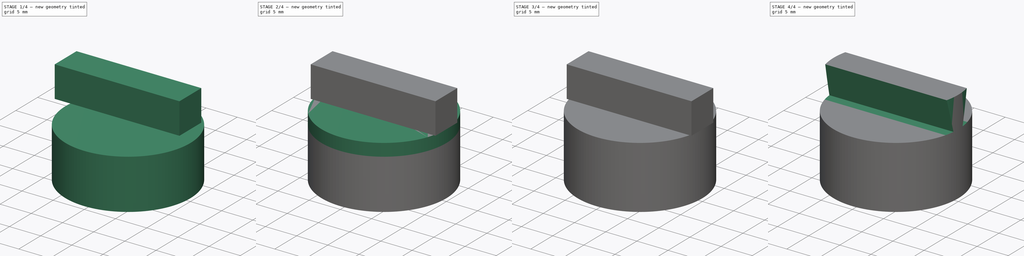
[diagram: build sequence overview — one tinted view per stage of 4, left to right]
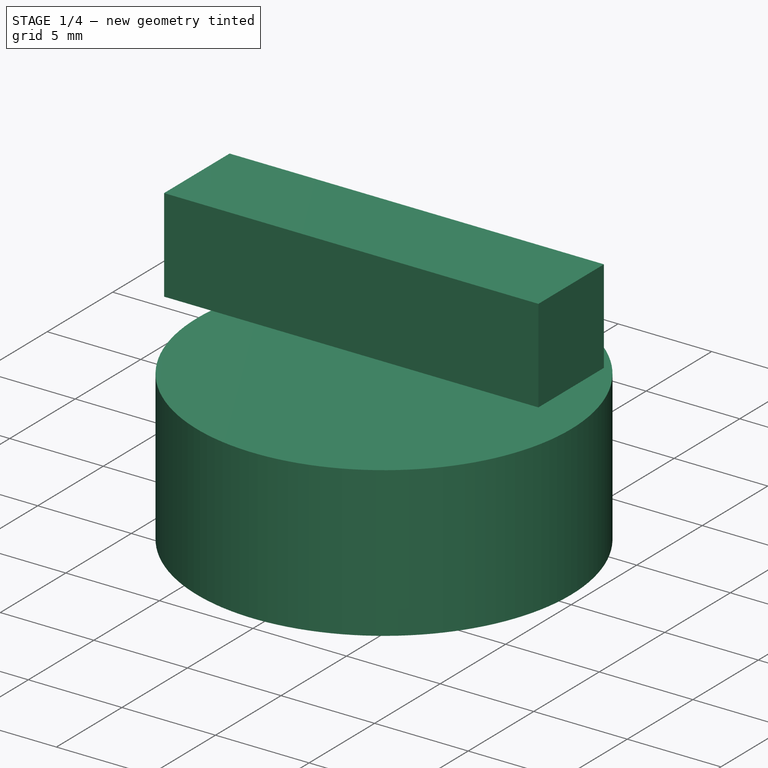
[diagram: stage 1 of 4 — iso view after this stage's code; geometry added in this stage tinted green]
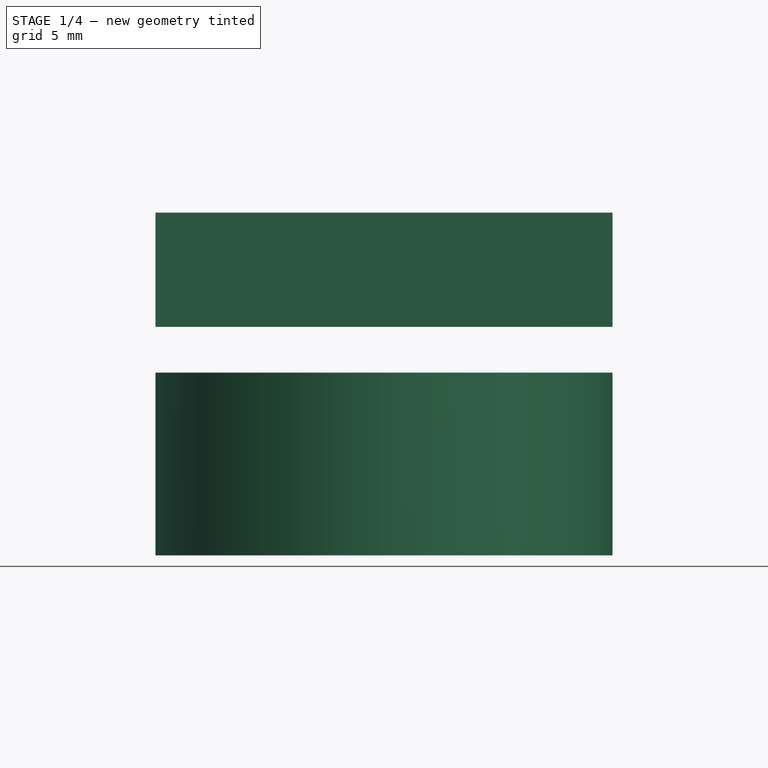
[diagram: stage 1 of 4 — front view after this stage's code; geometry added in this stage tinted green]
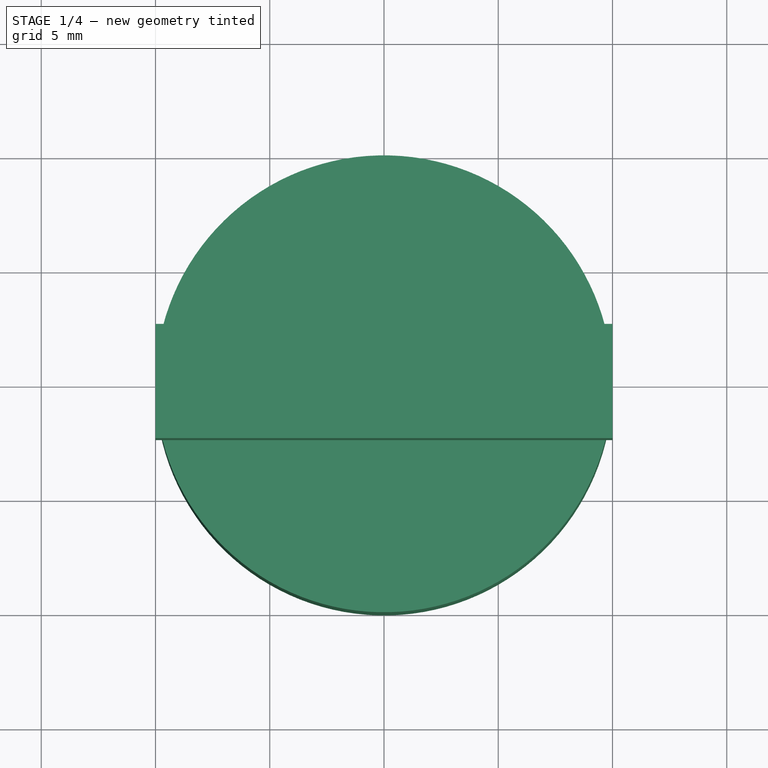
[diagram: stage 1 of 4 — top view after this stage's code; geometry added in this stage tinted green]
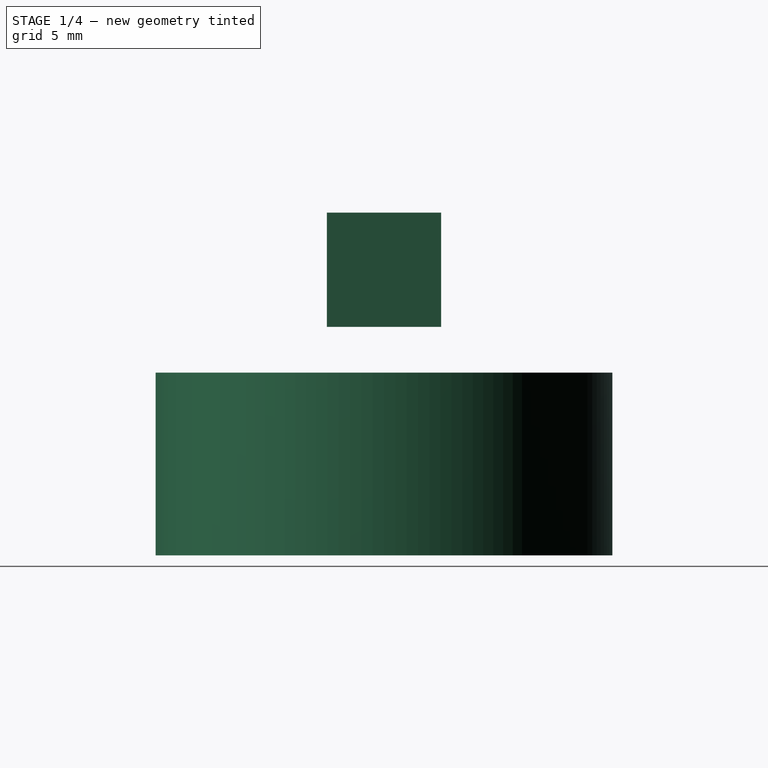
[diagram: stage 1 of 4 — right view after this stage's code; geometry added in this stage tinted green]
FCSTD DOCUMENT  (FreeCAD 0.17R13541 (Git))
Label: TripodToMagic
License: Other
LicenseURL: https://www.gnu.org/licenses/gpl-2.0.html
objects: Sketcher::SketchObject×5, PartDesign::Pocket×4, PartDesign::FeatureBase×2, PartDesign::Body×2, Part::Cylinder×1, PartDesign::Pad×1, Part::Box×1, Part::MultiFuse×1
note: 22 computed .brp shape members not serialized (recipe doc carries the construction recipe); baked Part::Feature solids carry a one-line shape summary decoded from their .brp

FEATURE [Part::Cylinder] Cylinder
  Angle = 360
  AttacherType = Attacher::AttachEngine3D
  Height = 8
  Radius = 10
FEATURE [PartDesign::Body] Body
  BaseFeature = -> Cylinder
  Group = -> [BaseFeature,Sketch,Pocket,Sketch001,Pad,Sketch002,Pocket001]
  Origin = -> Origin
  Tip = -> Pocket001
FEATURE [Part::Box] Box  label="AttachPart"
  AttacherType = Attacher::AttachEngine3D
  Height = 5
  Length = 20
  Placement = pos=(-10,-2.5,10) rot=(0,0,1;0rad)
  Width = 5
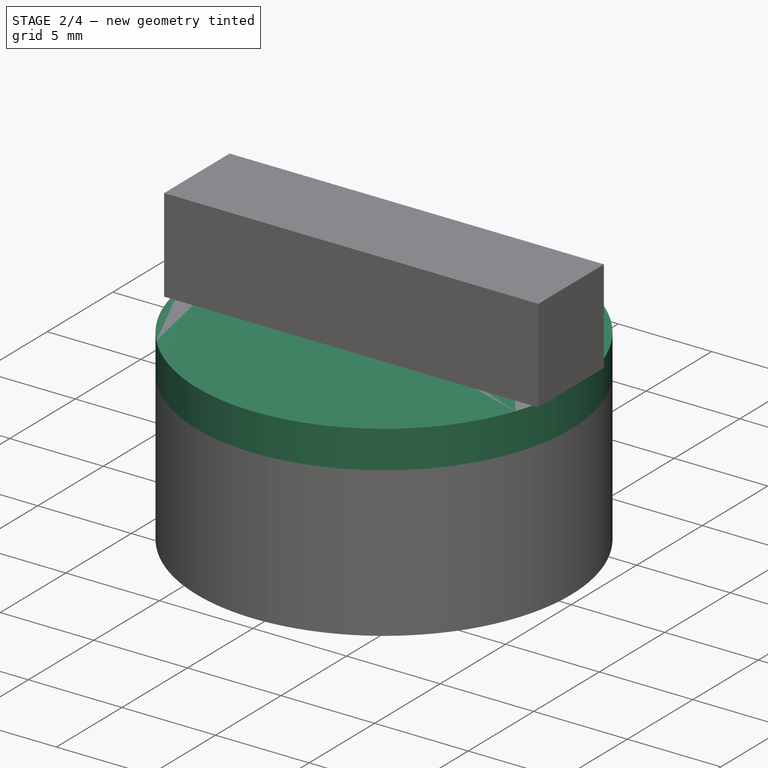
[diagram: stage 2 of 4 — iso view after this stage's code; geometry added in this stage tinted green]
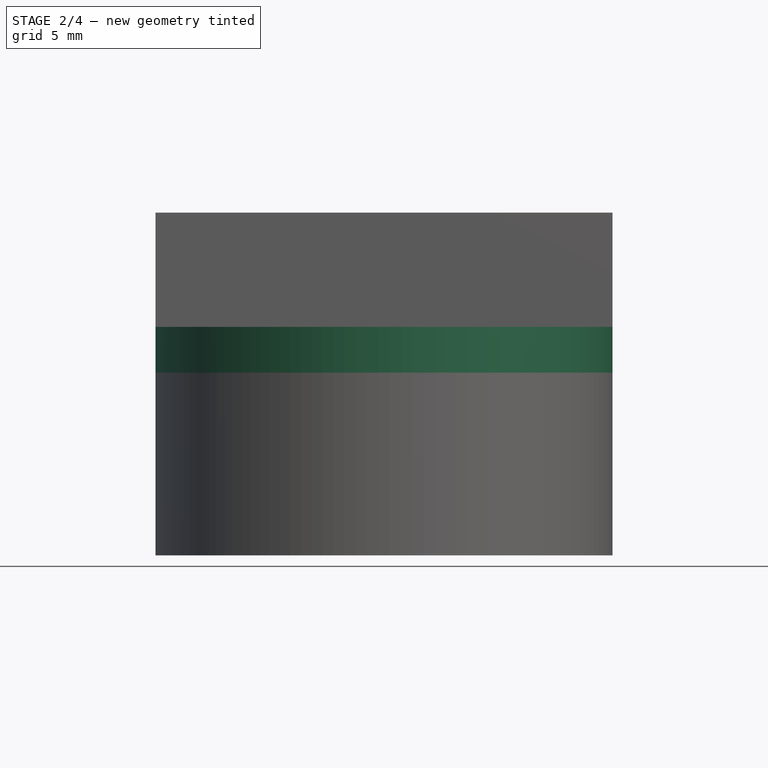
[diagram: stage 2 of 4 — front view after this stage's code; geometry added in this stage tinted green]
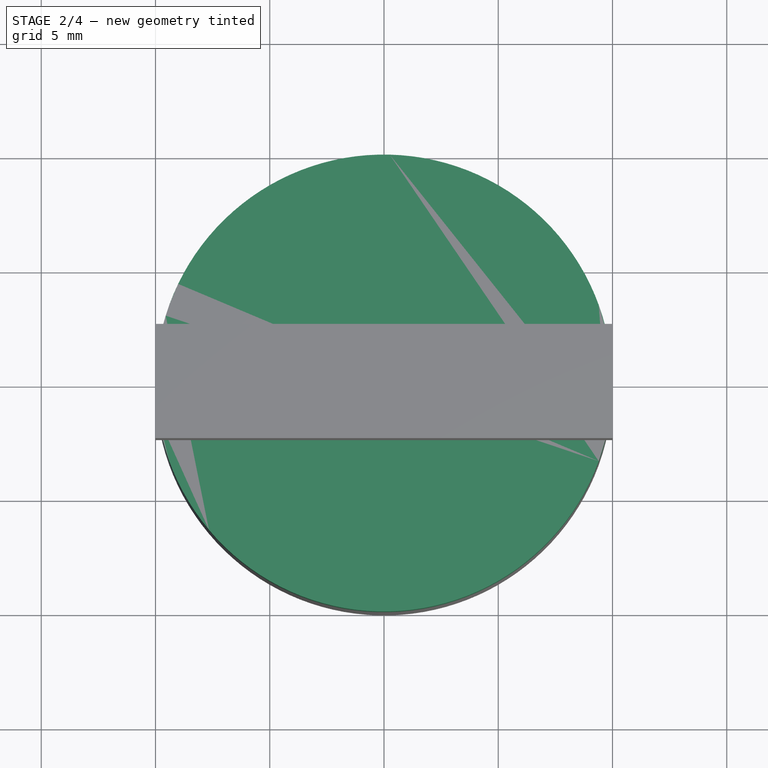
[diagram: stage 2 of 4 — top view after this stage's code; geometry added in this stage tinted green]
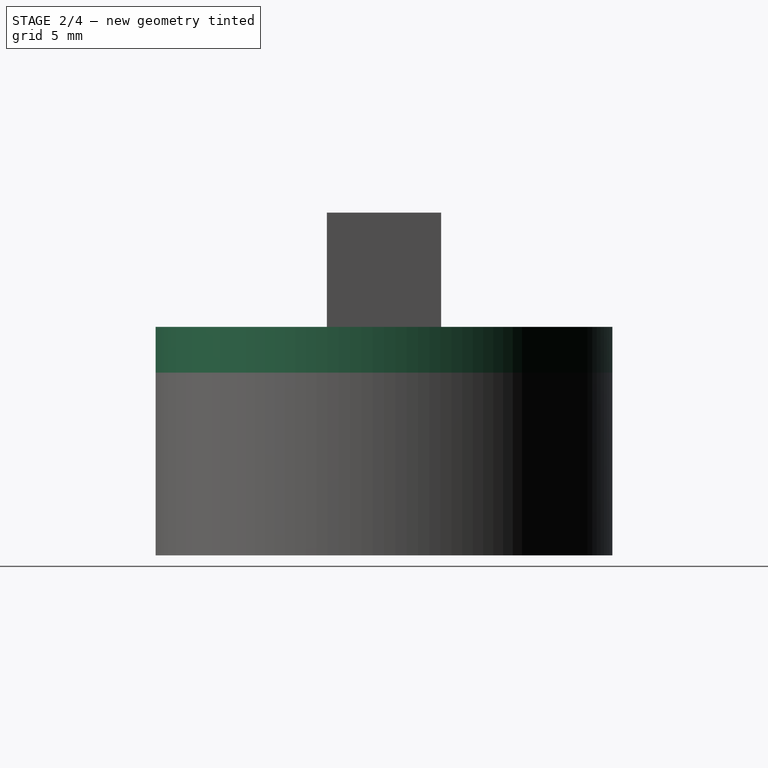
[diagram: stage 2 of 4 — right view after this stage's code; geometry added in this stage tinted green]
FEATURE [PartDesign::FeatureBase] BaseFeature
  BaseFeature = -> Cylinder
FEATURE [Sketcher::SketchObject] Sketch  label="SketchNut"
  MapMode = 5
  Placement = pos=(0,0,8) rot=(0,0,1;0rad)
  Support = -> [BaseFeature]
  sketch-geometry (7):
    g0: LineSegment StartX=3.45 StartY=-5.97558 StartZ=0 EndX=6.9 EndY=0 EndZ=0
    g1: LineSegment StartX=6.9 StartY=0 StartZ=0 EndX=3.45 EndY=5.97558 EndZ=0
    g2: LineSegment StartX=3.45 StartY=5.97558 StartZ=0 EndX=-3.45 EndY=5.97558 EndZ=0
    g3: LineSegment StartX=-3.45 StartY=5.97558 StartZ=0 EndX=-6.9 EndY=0 EndZ=0
    g4: LineSegment StartX=-6.9 StartY=0 StartZ=0 EndX=-3.45 EndY=-5.97558 EndZ=0
    g5: LineSegment StartX=-3.45 StartY=-5.97558 StartZ=0 EndX=3.45 EndY=-5.97558 EndZ=0
    g6: Circle [constr] CenterX=0 CenterY=0 CenterZ=0 NormalX=0 NormalY=0 NormalZ=1 AngleXU=0 Radius=6.9
  constraints (16):
    c: Coincident(g0,g1)
    c: Coincident(g1,g2)
    c: Coincident(g2,g3)
    c: Coincident(g3,g4)
    c: Coincident(g4,g5)
    c: Coincident(g5,g0)
    c: Equal(g0, g1-g5) x5
    c: PointOnObject(g0,g6)
    c: PointOnObject(g1,g6)
    c: PointOnObject(g2,g6)
    c: PointOnObject(g3,g6)
    c: PointOnObject(g4,g6)
    c: PointOnObject(g5,g6)
    c: Coincident(g6,g-1)
    c: Radius(g6) = 6.9
    c: PointOnObject(g0,g-1)
FEATURE [PartDesign::Pocket] Pocket
  BaseFeature = -> BaseFeature
  Length = 6
  Length2 = 100
  Profile = -> Sketch
  Type = 0
FEATURE [Sketcher::SketchObject] Sketch001  label="FillNut"
  ExternalGeometry = -> [Pocket]
  MapMode = 5
  Placement = pos=(0,0,8) rot=(0,0,1;0rad)
  Support = -> [Pocket]
  sketch-geometry (1):
    g0: Circle CenterX=0 CenterY=0 CenterZ=0 NormalX=0 NormalY=0 NormalZ=1 AngleXU=0 Radius=10
  constraints (2):
    c: Coincident(g0,g-1)
    c: Equal(g0,g-3)
FEATURE [PartDesign::Pad] Pad
  BaseFeature = -> Pocket
  Length = 2
  Length2 = 100
  Profile = -> Sketch001
  Type = 0
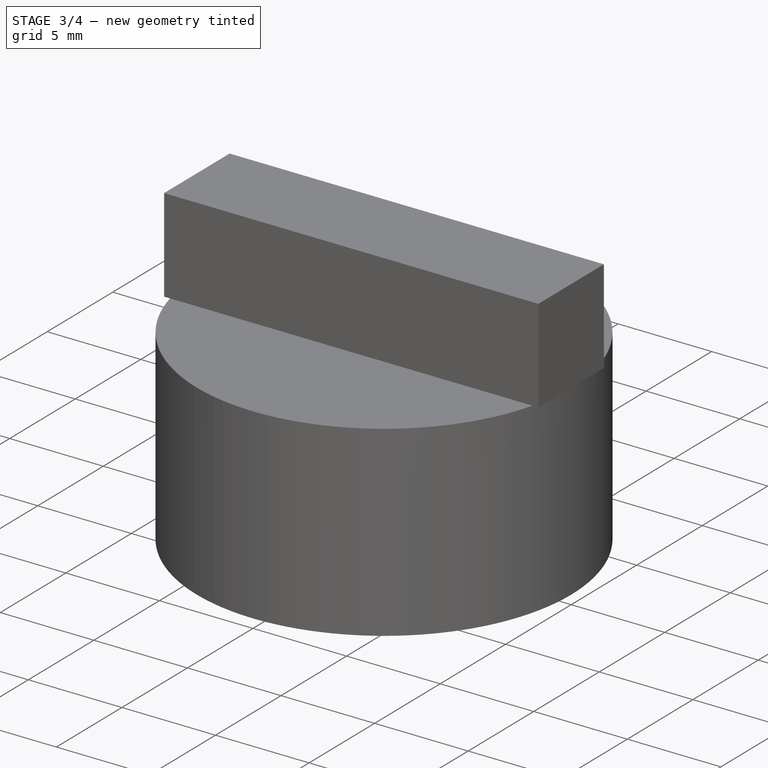
[diagram: stage 3 of 4 — iso view after this stage's code; geometry added in this stage tinted green]
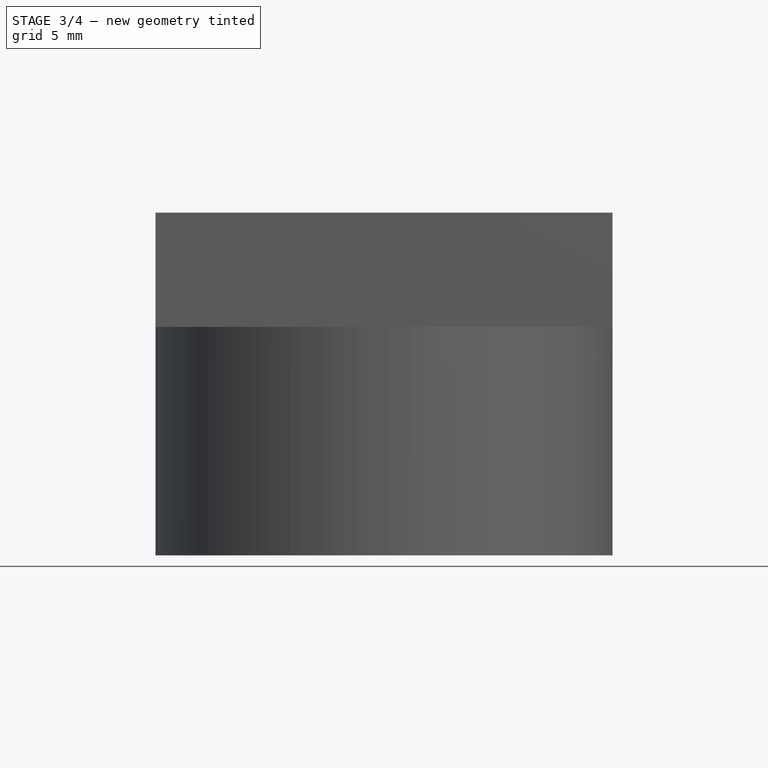
[diagram: stage 3 of 4 — front view after this stage's code; geometry added in this stage tinted green]
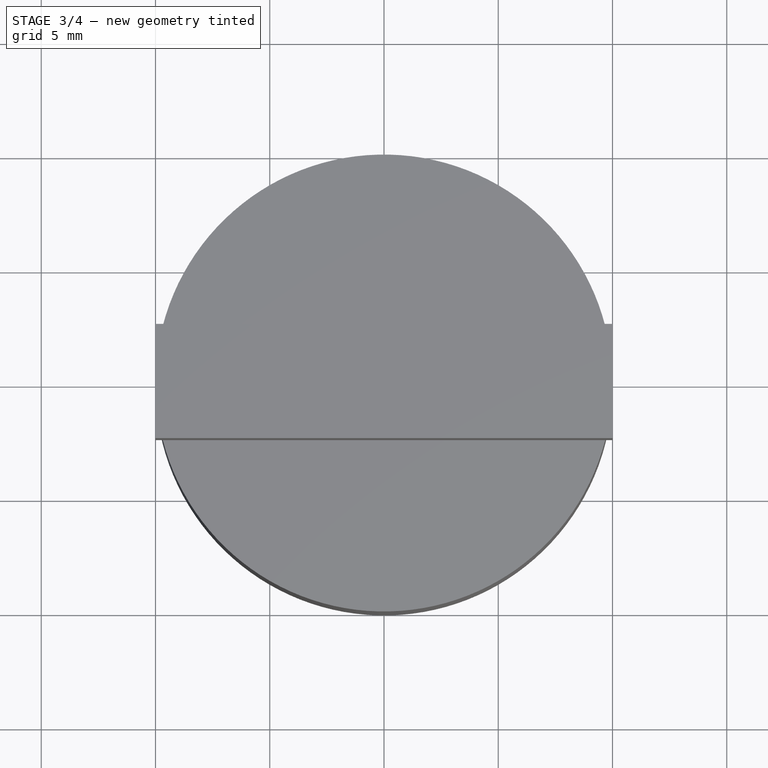
[diagram: stage 3 of 4 — top view after this stage's code; geometry added in this stage tinted green]
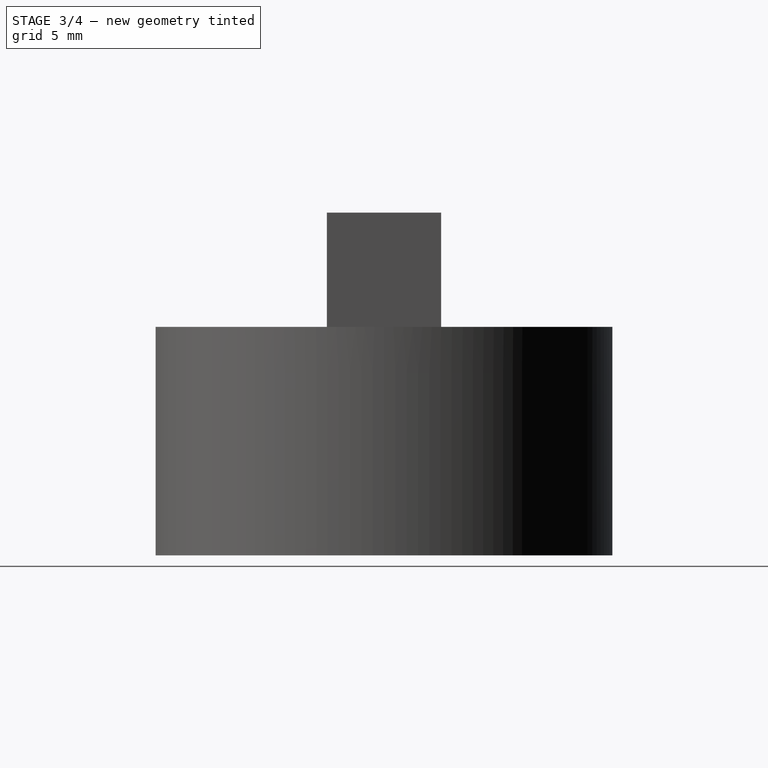
[diagram: stage 3 of 4 — right view after this stage's code; geometry added in this stage tinted green]
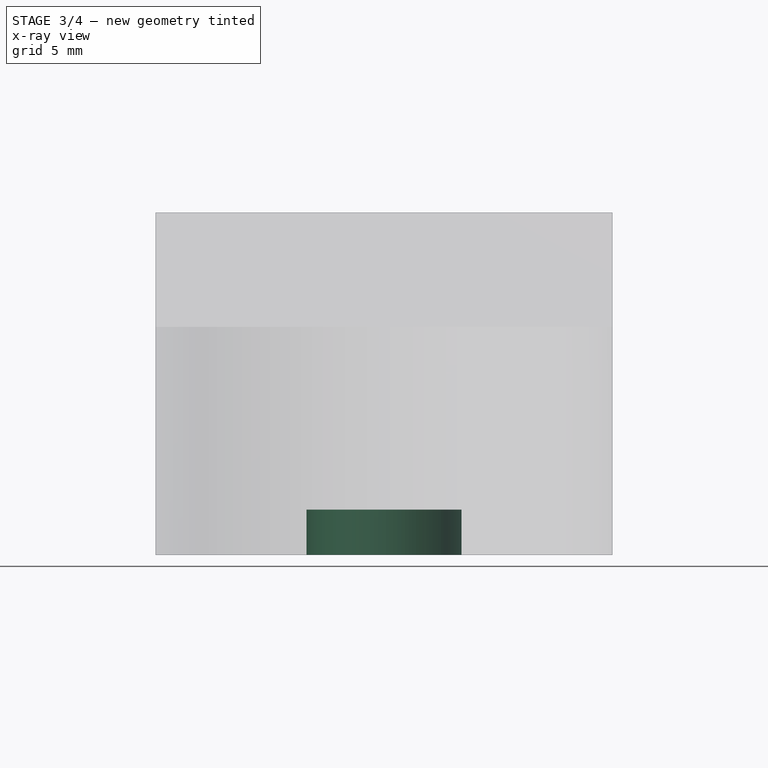
[diagram: stage 3 of 4 — x-ray composite at the front view; earlier geometry ghosted, this stage's added geometry solid]
FEATURE [Sketcher::SketchObject] Sketch002  label="ThreadHole"
  MapMode = 5
  Placement = pos=(0,0,0) rot=(1,0,0;3.14159rad)
  Support = -> [Pad]
  sketch-geometry (1):
    g0: Circle CenterX=0 CenterY=0 CenterZ=0 NormalX=0 NormalY=0 NormalZ=1 AngleXU=0 Radius=3.4
  constraints (2):
    c: Coincident(g-1,g0)
    c: Radius(g0) = 3.4
FEATURE [PartDesign::Pocket] Pocket001
  BaseFeature = -> Pad
  Length = 2
  Length2 = 100
  Profile = -> Sketch002
  Type = 0
FEATURE [Part::MultiFuse] Fusion  label="AttachFusion"
  Shapes = -> [Body,Box]
FEATURE [PartDesign::FeatureBase] BaseFeature001
  BaseFeature = -> Fusion
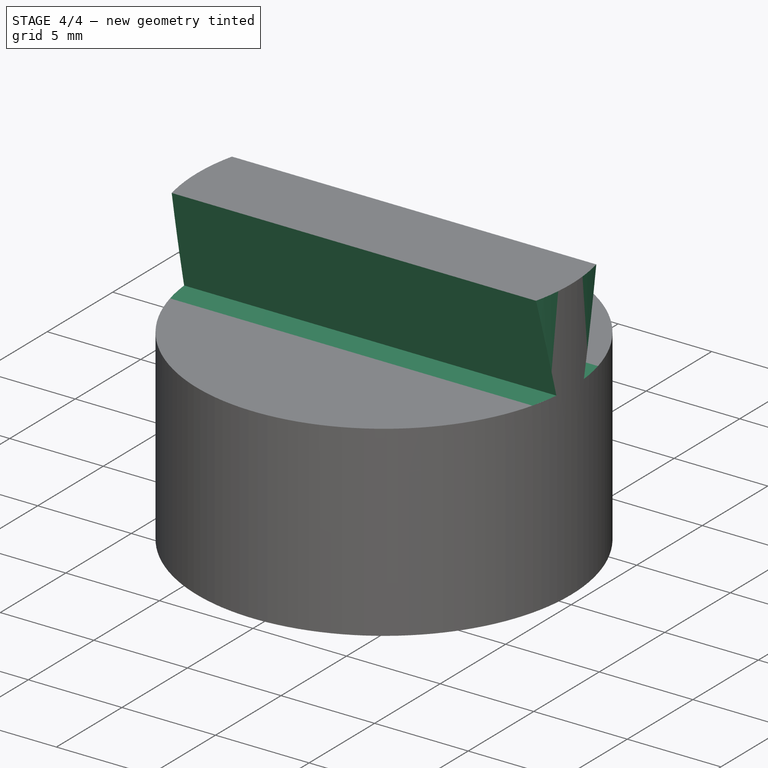
[diagram: stage 4 of 4 — iso view after this stage's code; geometry added in this stage tinted green]
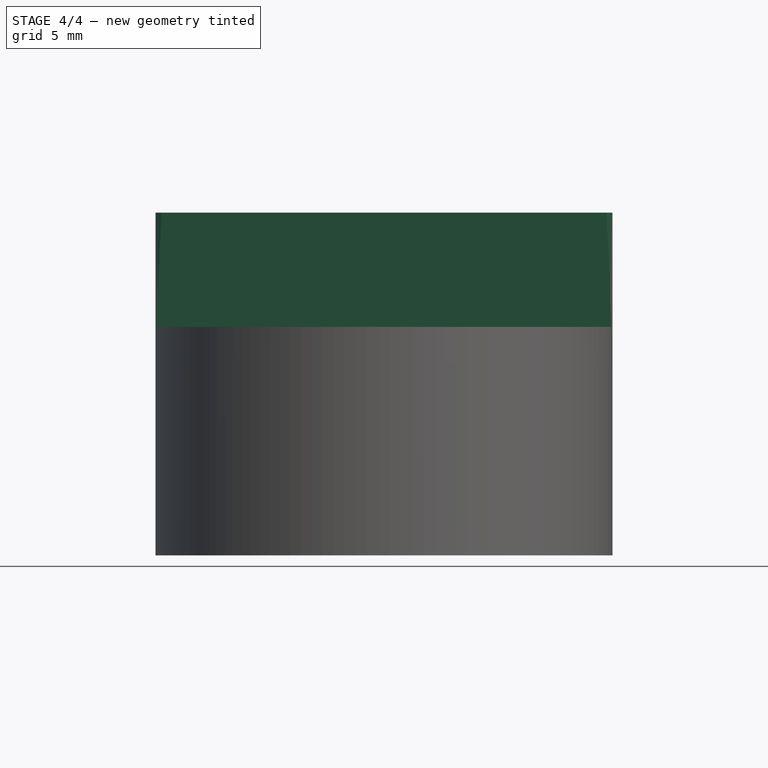
[diagram: stage 4 of 4 — front view after this stage's code; geometry added in this stage tinted green]
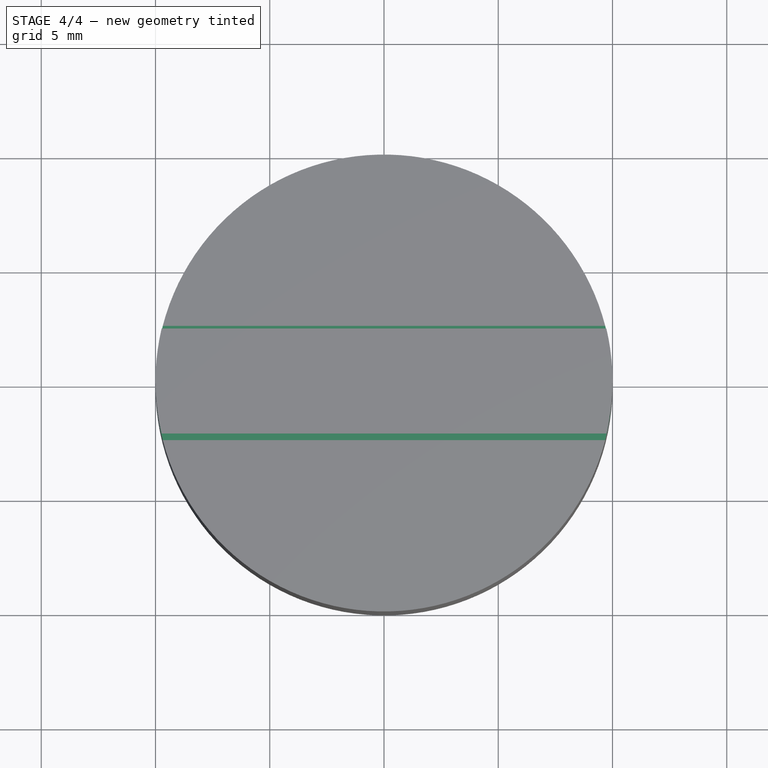
[diagram: stage 4 of 4 — top view after this stage's code; geometry added in this stage tinted green]
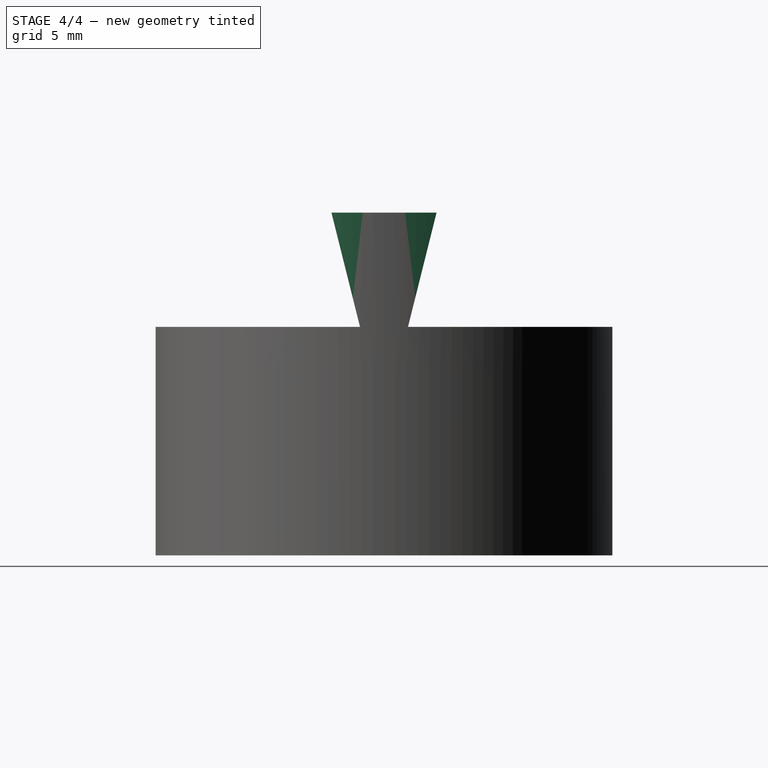
[diagram: stage 4 of 4 — right view after this stage's code; geometry added in this stage tinted green]
FEATURE [Sketcher::SketchObject] Sketch003  label="AttachSketch"
  ExternalGeometry = -> [BaseFeature001]
  MapMode = 5
  Placement = pos=(10,0,0) rot=(0.57735,0.57735,0.57735;2.0944rad)
  Support = -> [BaseFeature001]
  sketch-geometry (13):
    g0: LineSegment [constr] StartX=-2.3 StartY=15 StartZ=0 EndX=2.3 EndY=15 EndZ=0
    g1: LineSegment [constr] StartX=2.3 StartY=15 StartZ=0 EndX=1.05 EndY=10 EndZ=0
    g2: LineSegment [constr] StartX=1.05 StartY=10 StartZ=0 EndX=-1.05 EndY=10 EndZ=0
    g3: LineSegment [constr] StartX=-1.05 StartY=10 StartZ=0 EndX=-2.3 EndY=15 EndZ=0
    g4: GeomPoint X=0 Y=15 Z=0
    g5: LineSegment StartX=2.3 StartY=15 StartZ=0 EndX=2.5 EndY=15 EndZ=0
    g6: LineSegment StartX=2.5 StartY=15 StartZ=0 EndX=2.5 EndY=10 EndZ=0
    g7: LineSegment StartX=2.5 StartY=10 StartZ=0 EndX=1.05 EndY=10 EndZ=0
    g8: LineSegment StartX=1.05 StartY=10 StartZ=0 EndX=2.3 EndY=15 EndZ=0
    g9: LineSegment StartX=-2.5 StartY=15 StartZ=0 EndX=-2.3 EndY=15 EndZ=0
    g10: LineSegment StartX=-2.3 StartY=15 StartZ=0 EndX=-1.05 EndY=10 EndZ=0
    g11: LineSegment StartX=-1.05 StartY=10 StartZ=0 EndX=-2.5 EndY=10 EndZ=0
    g12: LineSegment StartX=-2.5 StartY=10 StartZ=0 EndX=-2.5 EndY=15 EndZ=0
  constraints (30):
    c: Coincident(g0,g1)
    c: Coincident(g1,g2)
    c: Coincident(g2,g3)
    c: Coincident(g3,g0)
    c: PointOnObject(g2,g-4)
    c: PointOnObject(g1,g-3)
    c: PointOnObject(g0,g-7)
    c: PointOnObject(g0,g-7)
    c: DistanceX(g0,g0) = 4.6
    c: PointOnObject(g4,g-2)
    c: PointOnObject(g4,g0)
    c: Symmetric(g0,g0,g4)
    c: DistanceX(g2,g2) = 2.1
    c: Symmetric(g2,g1,g-4)
    c: Coincident(g0,g5)
    c: Coincident(g5,g-7)
    c: Coincident(g5,g6)
    c: Coincident(g6,g-5)
    c: Coincident(g6,g7)
    c: Coincident(g7,g8)
    c: Coincident(g8,g5)
    c: Coincident(g1,g7)
    c: Coincident(g9,g10)
    c: Coincident(g10,g11)
    c: Coincident(g11,g12)
    c: Coincident(g12,g9)
    c: Coincident(g9,g0)
    c: Coincident(g9,g-7)
    c: Coincident(g11,g-6)
    c: Coincident(g10,g2)
FEATURE [PartDesign::Pocket] Pocket002
  BaseFeature = -> BaseFeature001
  Length = 5
  Length2 = 100
  Profile = -> Sketch003
  Type = 1
FEATURE [Sketcher::SketchObject] Sketch004  label="CircleSketch"
  ExternalGeometry = -> [Pocket002]
  MapMode = 5
  Placement = pos=(0,0,0) rot=(1,0,0;3.14159rad)
  Support = -> [Pocket002]
  sketch-geometry (2):
    g0: Circle CenterX=0 CenterY=0 CenterZ=0 NormalX=0 NormalY=0 NormalZ=1 AngleXU=0 Radius=10
    g1: Circle CenterX=0 CenterY=0 CenterZ=0 NormalX=0 NormalY=0 NormalZ=1 AngleXU=0 Radius=15
  constraints (4):
    c: Coincident(g1,g0)
    c: Coincident(g0,g-1)
    c: Equal(g0,g-3)
    c: Radius(g1) = 15
FEATURE [PartDesign::Pocket] Pocket003
  BaseFeature = -> Pocket002
  Length = 5
  Length2 = 100
  Profile = -> Sketch004
  Type = 1
FEATURE [PartDesign::Body] Body001  label="AttachBody"
  BaseFeature = -> Fusion
  Group = -> [BaseFeature001,Sketch003,Pocket002,Sketch004,Pocket003]
  Origin = -> Origin001
  Tip = -> Pocket003
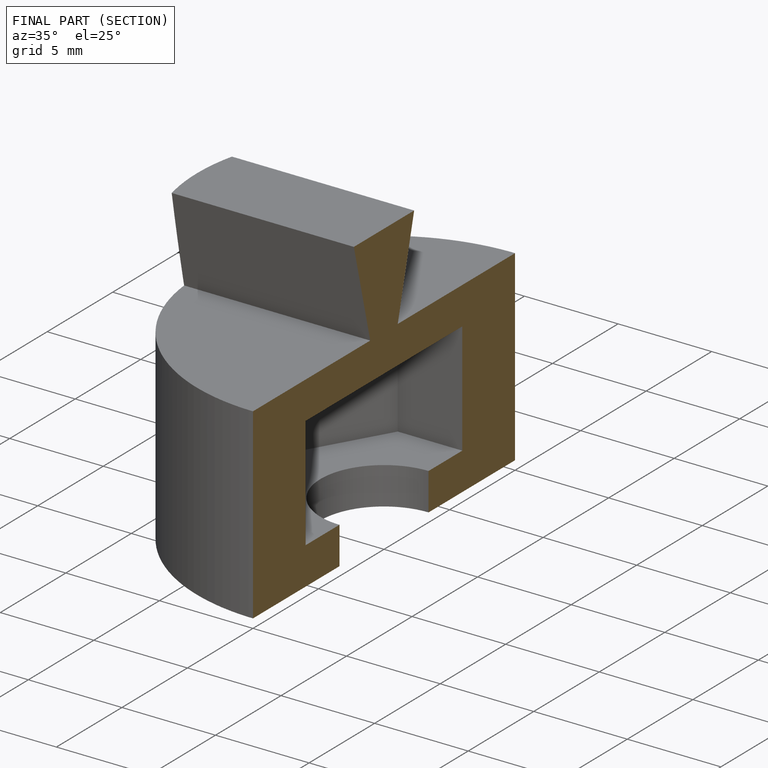
[diagram: finished part — half-section view (interior)]
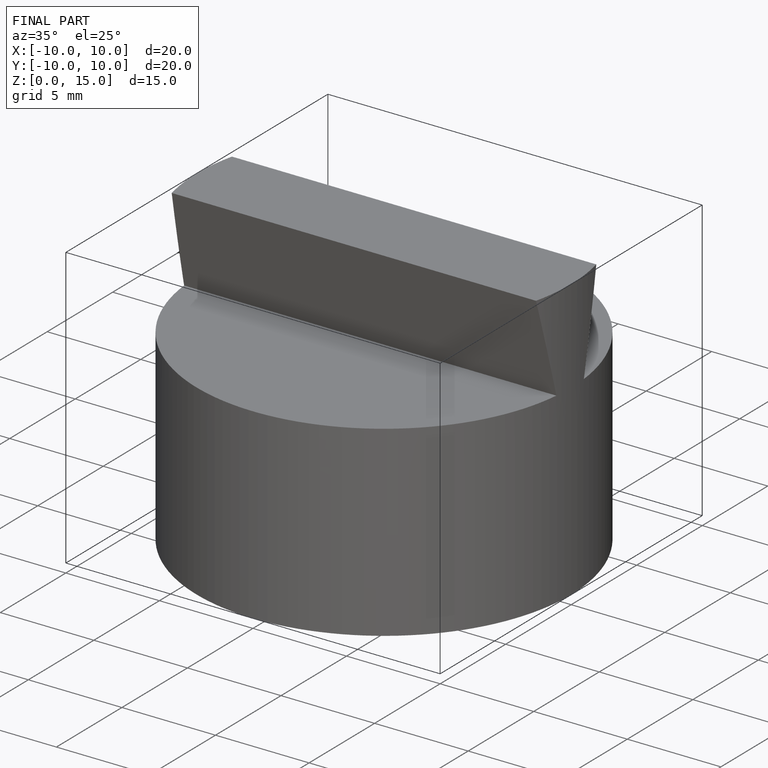
[diagram: finished part — iso view with bounding-box wireframe]
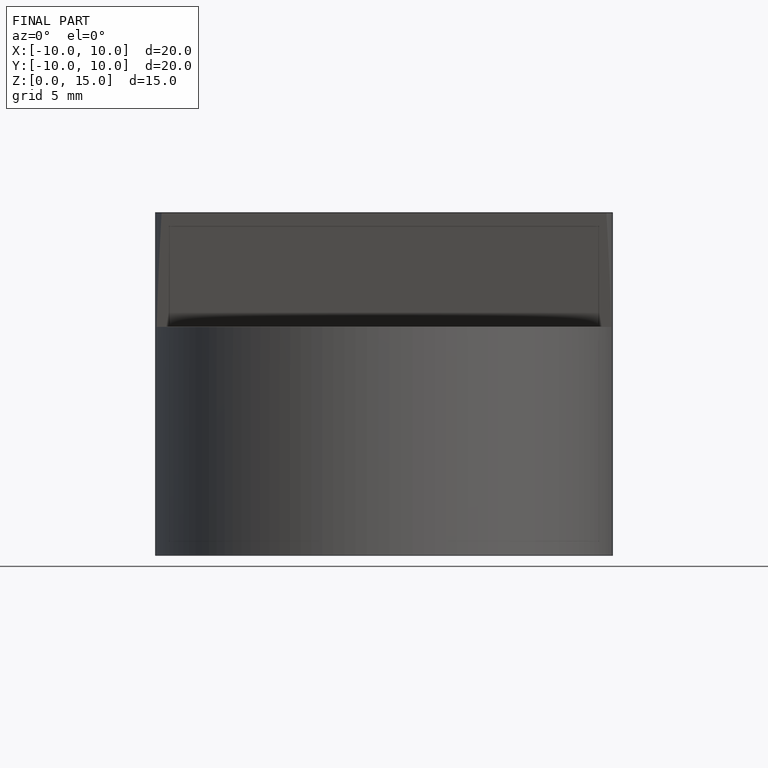
[diagram: finished part — front view with bounding-box wireframe]
